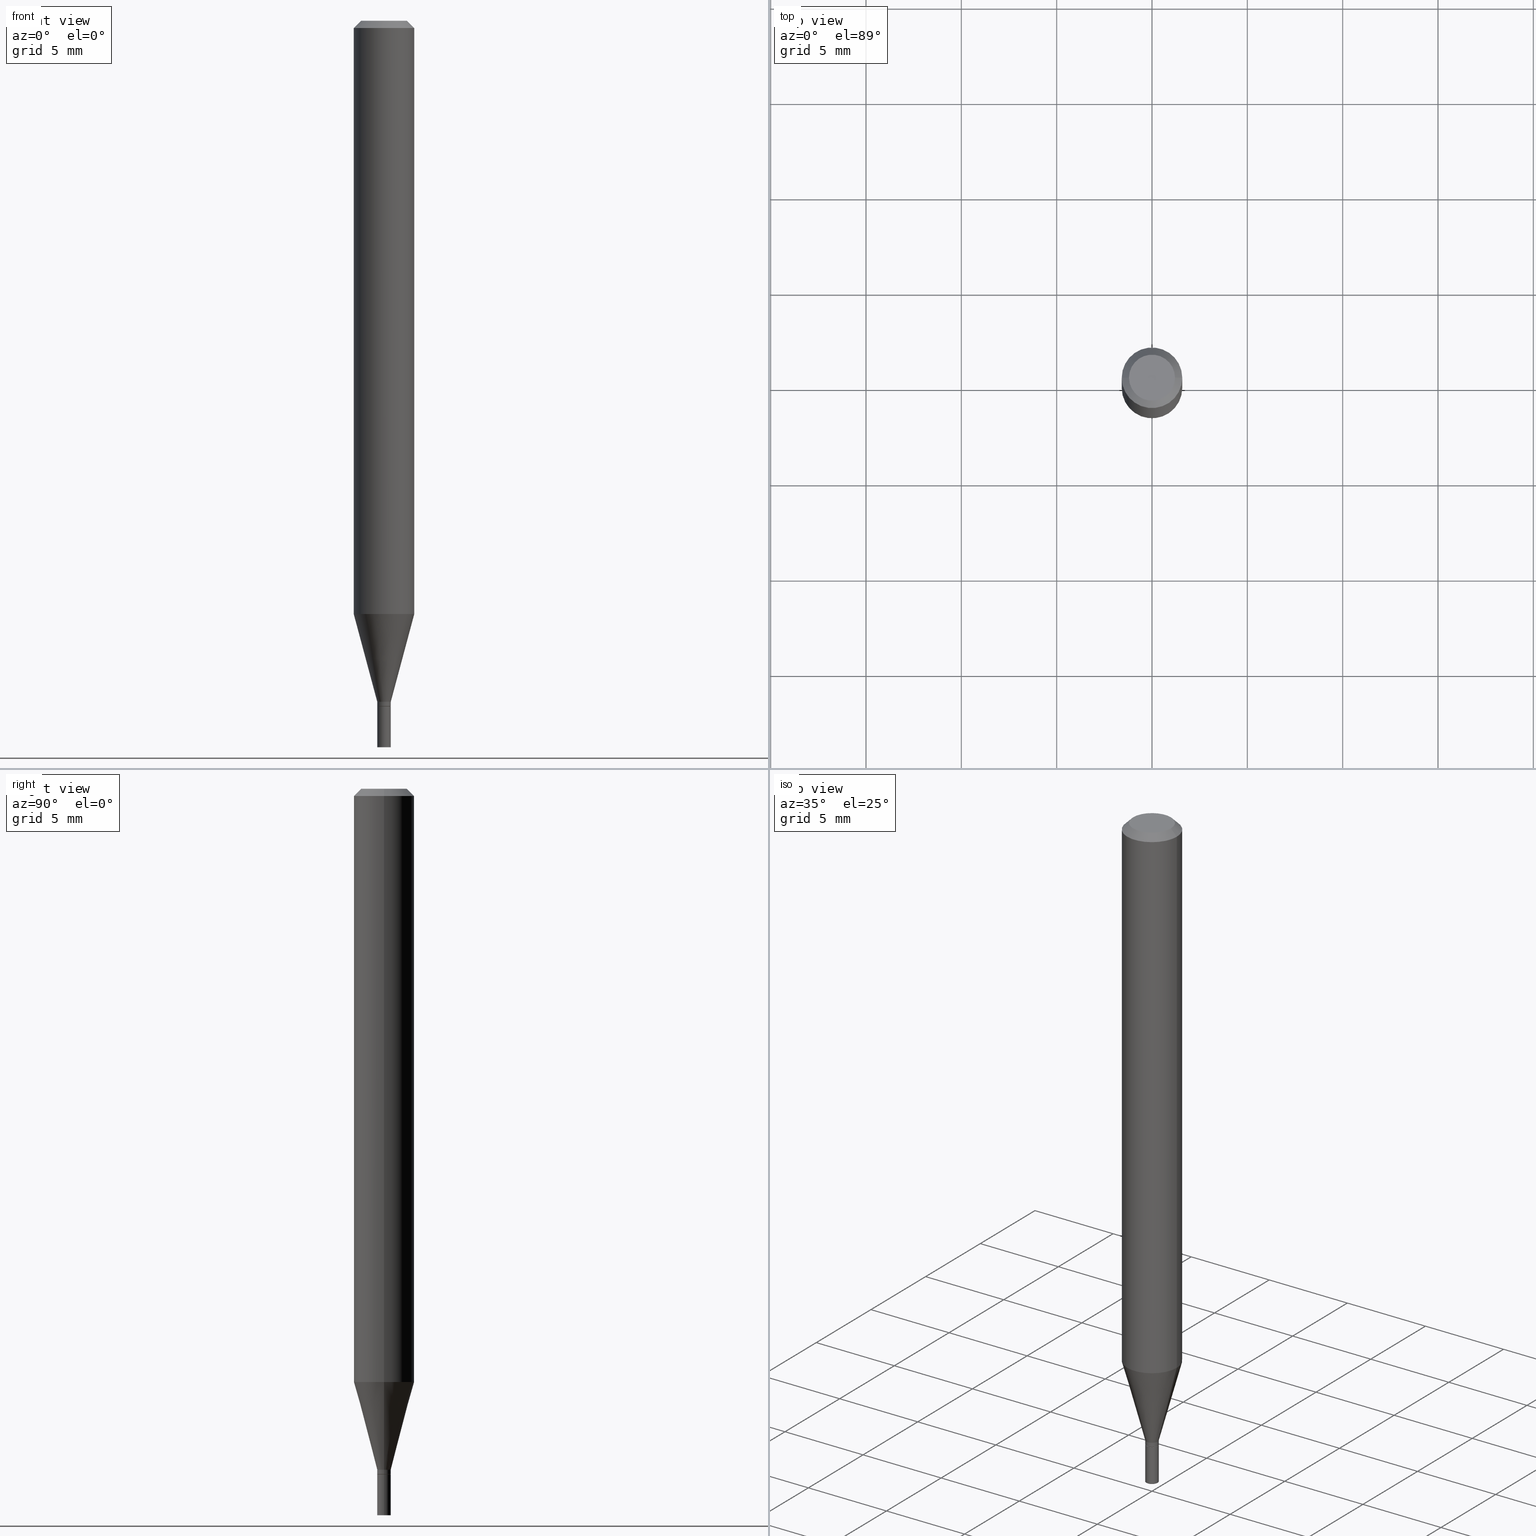
[diagram: canonical four-view strip — front | top / right | iso, engineering-drawing reading convention]
A machine part, canonical four-view strip (front | top / right | iso — engineering-drawing reading convention). The complete STEP part file that produces these views, byte-faithful:
ISO-10303-21;
HEADER;
FILE_DESCRIPTION (( 'STEP AP203' ),
    '1' );
FILE_NAME ('02335.STEP',
    '2024-03-18T20:09:18',
    ( '' ),
    ( '' ),
    'SwSTEP 2.0',
    'SolidWorks 2023',
    '' );
FILE_SCHEMA (( 'CONFIG_CONTROL_DESIGN' ));
ENDSEC;

DATA;
#1 = DIRECTION ( 'NONE',  ( 1.000000000000000000, -6.982962677686267499E-15, 4.852736867747366768E-29 ) ) ;
#2 = EDGE_CURVE ( 'NONE', #356, #214, #98, .T. ) ;
#3 = EDGE_CURVE ( 'NONE', #445, #4, #455, .T. ) ;
#4 = VERTEX_POINT ( 'NONE', #352 ) ;
#5 = DIRECTION ( 'NONE',  ( 2.438088387897960049E-29, -3.491481338843145188E-15, -1.000000000000000000 ) ) ;
#6 = FACE_OUTER_BOUND ( 'NONE', #204, .T. ) ;
#7 = AXIS2_PLACEMENT_3D ( 'NONE', #68, #444, #361 ) ;
#8 = ORIENTED_EDGE ( 'NONE', *, *, #19, .F. ) ;
#9 = CARTESIAN_POINT ( 'NONE',  ( 3.462783829558154044E-29, -4.943937575801894533E-15, -1.416000000000000147 ) ) ;
#10 = CARTESIAN_POINT ( 'NONE',  ( -0.01400000000000000203, -4.991103809026892241E-15, -1.416000000000000147 ) ) ;
#11 = ADVANCED_FACE ( 'NONE', ( #307 ), #235, .F. ) ;
#12 = ORIENTED_EDGE ( 'NONE', *, *, #447, .F. ) ;
#13 = DIRECTION ( 'NONE',  ( 1.000000000000000000, -6.982962677686266711E-15, 4.876176775795935793E-29 ) ) ;
#14 = ORIENTED_EDGE ( 'NONE', *, *, #50, .T. ) ;
#15 = DIRECTION ( 'NONE',  ( -0.2588190451025213501, 5.211531920934551042E-15, 0.9659258262890682012 ) ) ;
#16 = CIRCLE ( 'NONE', #142, 0.01400000000000000203 ) ;
#17 = AXIS2_PLACEMENT_3D ( 'NONE', #226, #267, #386 ) ;
#18 =( NAMED_UNIT ( * ) PLANE_ANGLE_UNIT ( ) SI_UNIT ( $, .RADIAN. ) );
#19 = EDGE_CURVE ( 'NONE', #299, #322, #313, .T. ) ;
#20 = AXIS2_PLACEMENT_3D ( 'NONE', #316, #140, #103 ) ;
#21 = SHAPE_DEFINITION_REPRESENTATION ( #354, #346 ) ;
#22 = PERSON_AND_ORGANIZATION ( #374, #189 ) ;
#23 = CALENDAR_DATE ( 2024, 18, 3 ) ;
#24 = ORIENTED_EDGE ( 'NONE', *, *, #177, .F. ) ;
#25 = CALENDAR_DATE ( 2024, 18, 3 ) ;
#26 = AXIS2_PLACEMENT_3D ( 'NONE', #97, #244, #208 ) ;
#27 = EDGE_CURVE ( 'NONE', #34, #299, #270, .T. ) ;
#28 = DIRECTION ( 'NONE',  ( 1.000000000000000000, -6.982962677686266711E-15, 0.000000000000000000 ) ) ;
#29 = DIRECTION ( 'NONE',  ( 2.445468806185136597E-29, -3.491481338843145583E-15, -1.000000000000000000 ) ) ;
#30 = ORIENTED_EDGE ( 'NONE', *, *, #360, .F. ) ;
#31 = CC_DESIGN_PERSON_AND_ORGANIZATION_ASSIGNMENT ( #45, #276, ( #274 ) ) ;
#32 = EDGE_CURVE ( 'NONE', #216, #356, #378, .T. ) ;
#33 = CARTESIAN_POINT ( 'NONE',  ( 9.776147748764236100E-17, 0.01399999999999505806, -1.416000000000000147 ) ) ;
#34 = VERTEX_POINT ( 'NONE', #80 ) ;
#35 = CARTESIAN_POINT ( 'NONE',  ( -0.01400000000000000203, 9.947598300641404042E-17, -6.886509126356868606E-31 ) ) ;
#36 = VECTOR ( 'NONE', #117, 39.37007874015748143 ) ;
#37 = VECTOR ( 'NONE', #355, 39.37007874015748143 ) ;
#38 = ORIENTED_EDGE ( 'NONE', *, *, #50, .F. ) ;
#39 = ORIENTED_EDGE ( 'NONE', *, *, #87, .F. ) ;
#40 = DIRECTION ( 'NONE',  ( 2.438088387897960049E-29, -3.491481338843145188E-15, -1.000000000000000000 ) ) ;
#41 = EDGE_LOOP ( 'NONE', ( #43, #112 ) ) ;
#42 = DIRECTION ( 'NONE',  ( -2.445468806185136597E-29, 3.491481338843145583E-15, 1.000000000000000000 ) ) ;
#43 = ORIENTED_EDGE ( 'NONE', *, *, #325, .T. ) ;
#44 = DIRECTION ( 'NONE',  ( 1.000000000000000000, -6.982962677686265922E-15, 4.876176775795935793E-29 ) ) ;
#45 = PERSON_AND_ORGANIZATION ( #374, #189 ) ;
#46 = AXIS2_PLACEMENT_3D ( 'NONE', #232, #190, #123 ) ;
#47 = VERTEX_POINT ( 'NONE', #317 ) ;
#48 = CONICAL_SURFACE ( 'NONE', #448, 0.01350000000000000158, 0.7853981633974718157 ) ;
#49 = FACE_OUTER_BOUND ( 'NONE', #167, .T. ) ;
#50 = EDGE_CURVE ( 'NONE', #376, #214, #358, .T. ) ;
#51 = MECHANICAL_CONTEXT ( 'NONE', #353, 'mechanical' ) ;
#52 = CARTESIAN_POINT ( 'NONE',  ( 3.438329141496302499E-29, -4.909022762413463673E-15, -1.406000000000000139 ) ) ;
#53 = CLOSED_SHELL ( 'NONE', ( #379, #421, #248, #392, #417, #326, #419, #261, #328, #58, #415, #127 ) ) ;
#54 = AXIS2_PLACEMENT_3D ( 'NONE', #52, #186, #296 ) ;
#55 = LOCAL_TIME ( 16, 9, 18.00000000000000000, #454 ) ;
#56 = DIRECTION ( 'NONE',  ( -2.445468806185136597E-29, 3.491481338843145583E-15, 1.000000000000000000 ) ) ;
#57 = FACE_OUTER_BOUND ( 'NONE', #391, .T. ) ;
#58 = ADVANCED_FACE ( 'NONE', ( #434 ), #215, .F. ) ;
#59 = ORIENTED_EDGE ( 'NONE', *, *, #385, .T. ) ;
#60 = AXIS2_PLACEMENT_3D ( 'NONE', #279, #440, #104 ) ;
#61 = CIRCLE ( 'NONE', #26, 0.01350000000000000158 ) ;
#62 = CC_DESIGN_APPROVAL ( #333, ( #195 ) ) ;
#63 = DATE_AND_TIME ( #23, #55 ) ;
#64 = EDGE_CURVE ( 'NONE', #106, #47, #71, .T. ) ;
#65 = DATE_TIME_ROLE ( 'classification_date' ) ;
#66 = FACE_OUTER_BOUND ( 'NONE', #187, .T. ) ;
#67 = DIRECTION ( 'NONE',  ( -2.445468806185136597E-29, 3.491481338843145583E-15, 1.000000000000000000 ) ) ;
#68 = CARTESIAN_POINT ( 'NONE',  ( 3.438329141496302499E-29, -4.909022762413463673E-15, -1.406000000000000139 ) ) ;
#69 = CARTESIAN_POINT ( 'NONE',  ( -0.06250000000000000000, -1.720621426954643378E-15, -0.01499999999999999944 ) ) ;
#70 = EDGE_LOOP ( 'NONE', ( #110, #252, #334, #365 ) ) ;
#71 = CIRCLE ( 'NONE', #184, 0.01350000000000000158 ) ;
#72 = CARTESIAN_POINT ( 'NONE',  ( 3.462783829558154044E-29, -4.943937575801894533E-15, -1.416000000000000147 ) ) ;
#73 = ORIENTED_EDGE ( 'NONE', *, *, #224, .T. ) ;
#74 = AXIS2_PLACEMENT_3D ( 'NONE', #420, #176, #340 ) ;
#75 = CONICAL_SURFACE ( 'NONE', #289, 0.06250000000000000000, 0.7853981633974579379 ) ;
#76 = VERTEX_POINT ( 'NONE', #223 ) ;
#77 = EDGE_CURVE ( 'NONE', #246, #341, #16, .T. ) ;
#78 = CARTESIAN_POINT ( 'NONE',  ( -0.01400000000000000203, -4.991103809026892241E-15, -1.500000000000000222 ) ) ;
#79 = CALENDAR_DATE ( 2024, 18, 3 ) ;
#80 = CARTESIAN_POINT ( 'NONE',  ( 0.01399999999999992223, -5.006784239901070239E-15, -1.406000000000000139 ) ) ;
#81 = VECTOR ( 'NONE', #15, 39.37007874015747433 ) ;
#82 =( CONVERSION_BASED_UNIT ( 'INCH', #265 ) LENGTH_UNIT ( ) NAMED_UNIT ( #330 ) );
#83 = DIRECTION ( 'NONE',  ( -2.445468806185136877E-29, 3.491481338843145188E-15, 1.000000000000000000 ) ) ;
#84 = EDGE_CURVE ( 'NONE', #322, #299, #338, .T. ) ;
#85 = MANIFOLD_SOLID_BREP ( 'Body-Move/Copy2[2]', #53 ) ;
#86 = CC_DESIGN_APPROVAL ( #129, ( #109 ) ) ;
#87 = EDGE_CURVE ( 'NONE', #299, #214, #94, .T. ) ;
#88 = PERSON_AND_ORGANIZATION ( #374, #189 ) ;
#89 = DIRECTION ( 'NONE',  ( -2.445468806185136597E-29, 3.491481338843145583E-15, 1.000000000000000000 ) ) ;
#90 = CARTESIAN_POINT ( 'NONE',  ( 2.995688370595427801E-29, -4.277049053526764910E-15, -1.224995535832909876 ) ) ;
#91 = ORIENTED_EDGE ( 'NONE', *, *, #32, .F. ) ;
#92 = EDGE_CURVE ( 'NONE', #4, #34, #438, .T. ) ;
#93 = CIRCLE ( 'NONE', #17, 0.01399999999999992396 ) ;
#94 = LINE ( 'NONE', #159, #125 ) ;
#95 = APPROVAL_STATUS ( 'not_yet_approved' ) ;
#96 = APPROVAL_PERSON_ORGANIZATION ( #22, #333, #269 ) ;
#97 = CARTESIAN_POINT ( 'NONE',  ( 3.462783829558154044E-29, -4.943937575801894533E-15, -1.416000000000000147 ) ) ;
#98 = LINE ( 'NONE', #240, #172 ) ;
#99 = VECTOR ( 'NONE', #237, 39.37007874015748143 ) ;
#100 = LINE ( 'NONE', #309, #278 ) ;
#101 = CIRCLE ( 'NONE', #113, 0.01400000000000000203 ) ;
#102 = DIRECTION ( 'NONE',  ( -0.7071067811865542341, 2.468850131082328058E-15, -0.7071067811865405783 ) ) ;
#103 = DIRECTION ( 'NONE',  ( 1.000000000000000000, -6.982962677686266711E-15, 4.876176775795935232E-29 ) ) ;
#104 = DIRECTION ( 'NONE',  ( 1.000000000000000000, -6.982962677686266711E-15, 4.876176775795935232E-29 ) ) ;
#105 = CARTESIAN_POINT ( 'NONE',  ( 0.000000000000000000, 0.000000000000000000, 0.000000000000000000 ) ) ;
#106 = VERTEX_POINT ( 'NONE', #400 ) ;
#107 = CARTESIAN_POINT ( 'NONE',  ( 3.668203209277705088E-31, -5.237222008264718399E-17, -0.01499999999999999944 ) ) ;
#108 = ORIENTED_EDGE ( 'NONE', *, *, #211, .T. ) ;
#109 = PRODUCT_DEFINITION_FORMATION_WITH_SPECIFIED_SOURCE ( 'ANY', '', #319, .NOT_KNOWN. ) ;
#110 = ORIENTED_EDGE ( 'NONE', *, *, #233, .F. ) ;
#111 = APPROVAL_ROLE ( '' ) ;
#112 = ORIENTED_EDGE ( 'NONE', *, *, #300, .T. ) ;
#113 = AXIS2_PLACEMENT_3D ( 'NONE', #72, #318, #439 ) ;
#114 = ORIENTED_EDGE ( 'NONE', *, *, #27, .F. ) ;
#115 = PERSON_AND_ORGANIZATION ( #374, #189 ) ;
#116 = EDGE_CURVE ( 'NONE', #47, #4, #395, .T. ) ;
#117 = DIRECTION ( 'NONE',  ( -2.445468806185136877E-29, 3.491481338843145188E-15, 1.000000000000000000 ) ) ;
#118 = CIRCLE ( 'NONE', #461, 0.01400000000000000203 ) ;
#119 = PERSON_AND_ORGANIZATION ( #374, #189 ) ;
#120 = DIRECTION ( 'NONE',  ( 1.000000000000000000, -6.982962677686262766E-15, 0.000000000000000000 ) ) ;
#121 = DIRECTION ( 'NONE',  ( 1.000000000000000000, -6.982962677686270655E-15, 0.000000000000000000 ) ) ;
#122 = VERTEX_POINT ( 'NONE', #10 ) ;
#123 = DIRECTION ( 'NONE',  ( 1.000000000000000000, -6.982962677686270655E-15, 0.000000000000000000 ) ) ;
#124 = COORDINATED_UNIVERSAL_TIME_OFFSET ( 5, 0, .BEHIND. ) ;
#125 = VECTOR ( 'NONE', #393, 39.37007874015748143 ) ;
#126 = AXIS2_PLACEMENT_3D ( 'NONE', #222, #146, #217 ) ;
#127 = ADVANCED_FACE ( 'NONE', ( #297 ), #180, .T. ) ;
#128 = EDGE_CURVE ( 'NONE', #106, #445, #100, .T. ) ;
#129 = APPROVAL ( #390, 'UNSPECIFIED' ) ;
#130 = ADVANCED_FACE ( 'NONE', ( #459 ), #312, .T. ) ;
#131 = CARTESIAN_POINT ( 'NONE',  ( 0.01400000000000000203, -5.334983485752326321E-15, -1.500000000000000222 ) ) ;
#132 =( GEOMETRIC_REPRESENTATION_CONTEXT ( 3 ) GLOBAL_UNCERTAINTY_ASSIGNED_CONTEXT ( ( #153 ) ) GLOBAL_UNIT_ASSIGNED_CONTEXT ( ( #82, #18, #155 ) ) REPRESENTATION_CONTEXT ( 'NONE', 'WORKASPACE' ) );
#133 = DIRECTION ( 'NONE',  ( -2.445468806185136597E-29, 3.491481338843145583E-15, 1.000000000000000000 ) ) ;
#134 = ORIENTED_EDGE ( 'NONE', *, *, #2, .T. ) ;
#135 = CARTESIAN_POINT ( 'NONE',  ( 3.668203209277704895E-29, -5.237222008264718177E-15, -1.500000000000000222 ) ) ;
#136 = EDGE_CURVE ( 'NONE', #214, #376, #188, .T. ) ;
#137 = FACE_OUTER_BOUND ( 'NONE', #321, .T. ) ;
#138 = DIRECTION ( 'NONE',  ( 0.2588190451025213501, 1.565188264969621968E-15, 0.9659258262890682012 ) ) ;
#139 = ORIENTED_EDGE ( 'NONE', *, *, #192, .T. ) ;
#140 = DIRECTION ( 'NONE',  ( -2.445468806185136597E-29, 3.491481338843145583E-15, 1.000000000000000000 ) ) ;
#141 = ORIENTED_EDGE ( 'NONE', *, *, #128, .T. ) ;
#142 = AXIS2_PLACEMENT_3D ( 'NONE', #383, #89, #120 ) ;
#143 = CARTESIAN_POINT ( 'NONE',  ( 3.668203209277705088E-31, -5.237222008264718399E-17, -0.01499999999999999944 ) ) ;
#144 = CONICAL_SURFACE ( 'NONE', #74, 0.01350000000000000158, 0.7853981633974718157 ) ;
#145 = CC_DESIGN_PERSON_AND_ORGANIZATION_ASSIGNMENT ( #430, #157, ( #109 ) ) ;
#146 = DIRECTION ( 'NONE',  ( 0.000000000000000000, 0.000000000000000000, 1.000000000000000000 ) ) ;
#147 = ORIENTED_EDGE ( 'NONE', *, *, #87, .T. ) ;
#148 = LINE ( 'NONE', #150, #81 ) ;
#149 = ORIENTED_EDGE ( 'NONE', *, *, #84, .F. ) ;
#150 = CARTESIAN_POINT ( 'NONE',  ( -0.01399999999999992223, -4.809546779407050347E-15, -1.406000000000000139 ) ) ;
#151 = APPROVAL_PERSON_ORGANIZATION ( #115, #183, #111 ) ;
#152 = ORIENTED_EDGE ( 'NONE', *, *, #447, .T. ) ;
#153 = UNCERTAINTY_MEASURE_WITH_UNIT (LENGTH_MEASURE( 1.000000000000000082E-05 ), #82, 'distance_accuracy_value', 'NONE');
#154 = PERSON_AND_ORGANIZATION ( #374, #189 ) ;
#155 =( NAMED_UNIT ( * ) SI_UNIT ( $, .STERADIAN. ) SOLID_ANGLE_UNIT ( ) );
#156 = CONICAL_SURFACE ( 'NONE', #7, 0.01399999999999992223, 0.2617993877991500740 ) ;
#157 = PERSON_AND_ORGANIZATION_ROLE ( 'design_supplier' ) ;
#158 = CARTESIAN_POINT ( 'NONE',  ( 3.668203209277705088E-31, -5.237222008264718399E-17, -0.01499999999999999944 ) ) ;
#159 = CARTESIAN_POINT ( 'NONE',  ( 0.06250000000000000000, -4.364351673553916694E-16, 3.047610484872459871E-30 ) ) ;
#160 = EDGE_CURVE ( 'NONE', #445, #76, #452, .T. ) ;
#161 = APPROVAL_DATE_TIME ( #63, #333 ) ;
#162 = AXIS2_PLACEMENT_3D ( 'NONE', #33, #40, #396 ) ;
#163 = CYLINDRICAL_SURFACE ( 'NONE', #20, 0.01400000000000000203 ) ;
#164 = FACE_OUTER_BOUND ( 'NONE', #403, .T. ) ;
#165 = AXIS2_PLACEMENT_3D ( 'NONE', #397, #67, #198 ) ;
#166 = DIRECTION ( 'NONE',  ( -2.445468806185136597E-29, 3.491481338843145583E-15, 1.000000000000000000 ) ) ;
#167 = EDGE_LOOP ( 'NONE', ( #331, #141, #253, #301 ) ) ;
#168 = FACE_OUTER_BOUND ( 'NONE', #423, .T. ) ;
#169 = ORIENTED_EDGE ( 'NONE', *, *, #360, .T. ) ;
#170 = ORIENTED_EDGE ( 'NONE', *, *, #92, .T. ) ;
#171 = CARTESIAN_POINT ( 'NONE',  ( -0.06250000000000000000, -3.832959843676702294E-15, -1.224995535832909876 ) ) ;
#172 = VECTOR ( 'NONE', #209, 39.37007874015748854 ) ;
#173 = APPROVAL_DATE_TIME ( #368, #183 ) ;
#174 = ORIENTED_EDGE ( 'NONE', *, *, #373, .F. ) ;
#175 = ORIENTED_EDGE ( 'NONE', *, *, #160, .F. ) ;
#176 = DIRECTION ( 'NONE',  ( -2.445468806185136597E-29, 3.491481338843145583E-15, 1.000000000000000000 ) ) ;
#177 = EDGE_CURVE ( 'NONE', #341, #288, #382, .T. ) ;
#178 = ORIENTED_EDGE ( 'NONE', *, *, #64, .F. ) ;
#179 = PERSON_AND_ORGANIZATION_ROLE ( 'design_owner' ) ;
#180 = CYLINDRICAL_SURFACE ( 'NONE', #370, 0.01399999999999992223 ) ;
#181 = EDGE_LOOP ( 'NONE', ( #175, #416, #170, #282 ) ) ;
#182 = CARTESIAN_POINT ( 'NONE',  ( 3.462783829558154044E-29, -4.943937575801894533E-15, -1.416000000000000147 ) ) ;
#183 = APPROVAL ( #381, 'UNSPECIFIED' ) ;
#184 = AXIS2_PLACEMENT_3D ( 'NONE', #257, #221, #263 ) ;
#185 = CC_DESIGN_APPROVAL ( #183, ( #274 ) ) ;
#186 = DIRECTION ( 'NONE',  ( -2.445468806185136597E-29, 3.491481338843145583E-15, 1.000000000000000000 ) ) ;
#187 = EDGE_LOOP ( 'NONE', ( #308, #134, #367, #30 ) ) ;
#188 = CIRCLE ( 'NONE', #236, 0.06250000000000000000 ) ;
#189 = ORGANIZATION ( 'UNSPECIFIED', 'UNSPECIFIED', '' ) ;
#190 = DIRECTION ( 'NONE',  ( -2.445468806185136597E-29, 3.491481338843145583E-15, 1.000000000000000000 ) ) ;
#191 = PERSON_AND_ORGANIZATION_ROLE ( 'creator' ) ;
#192 = EDGE_CURVE ( 'NONE', #4, #445, #93, .T. ) ;
#193 = CARTESIAN_POINT ( 'NONE',  ( 3.576687321579069994E-29, -5.368277968210015545E-15, -1.500000000000000222 ) ) ;
#194 = DIRECTION ( 'NONE',  ( -2.445468806185136877E-29, 3.491481338843145188E-15, 1.000000000000000000 ) ) ;
#195 = SECURITY_CLASSIFICATION ( '', '', #304 ) ;
#196 = DIRECTION ( 'NONE',  ( -0.7071067811865642261, 7.493145998870414114E-15, 0.7071067811865309194 ) ) ;
#197 = DIRECTION ( 'NONE',  ( -1.000000000000000000, 6.982962677686266711E-15, 0.000000000000000000 ) ) ;
#198 = DIRECTION ( 'NONE',  ( 1.000000000000000000, -6.982962677686301420E-15, 0.000000000000000000 ) ) ;
#199 = DIRECTION ( 'NONE',  ( -2.445468806185136597E-29, 3.491481338843145583E-15, 1.000000000000000000 ) ) ;
#200 = PLANE ( 'NONE',  #162 ) ;
#201 = CC_DESIGN_PERSON_AND_ORGANIZATION_ASSIGNMENT ( #88, #348, ( #195 ) ) ;
#202 = CARTESIAN_POINT ( 'NONE',  ( 0.01399999999999992223, -9.776147748760718273E-17, 6.826647486114272170E-31 ) ) ;
#203 = CARTESIAN_POINT ( 'NONE',  ( 7.003305027062207074E-45, -9.998863510493265527E-31, -2.863788329398962481E-16 ) ) ;
#204 = EDGE_LOOP ( 'NONE', ( #362, #108, #327, #149 ) ) ;
#205 = DIRECTION ( 'NONE',  ( -2.445468806185136597E-29, 3.491481338843145583E-15, 1.000000000000000000 ) ) ;
#206 = LOCAL_TIME ( 16, 9, 18.00000000000000000, #411 ) ;
#207 = ORIENTED_EDGE ( 'NONE', *, *, #2, .F. ) ;
#208 = DIRECTION ( 'NONE',  ( 1.000000000000000000, -6.982962677686296687E-15, 0.000000000000000000 ) ) ;
#209 = DIRECTION ( 'NONE',  ( 0.7071067811865542341, -7.319954787623278133E-15, -0.7071067811865405783 ) ) ;
#210 = ORIENTED_EDGE ( 'NONE', *, *, #92, .F. ) ;
#211 = EDGE_CURVE ( 'NONE', #76, #34, #230, .T. ) ;
#212 = ORIENTED_EDGE ( 'NONE', *, *, #233, .T. ) ;
#213 = LINE ( 'NONE', #320, #389 ) ;
#214 = VERTEX_POINT ( 'NONE', #284 ) ;
#215 = PLANE ( 'NONE',  #229 ) ;
#216 = VERTEX_POINT ( 'NONE', #466 ) ;
#217 = DIRECTION ( 'NONE',  ( 1.000000000000000000, 0.000000000000000000, 0.000000000000000000 ) ) ;
#218 = AXIS2_PLACEMENT_3D ( 'NONE', #193, #268, #427 ) ;
#219 = DIRECTION ( 'NONE',  ( 1.000000000000000000, -6.982962677686296687E-15, 0.000000000000000000 ) ) ;
#220 = CIRCLE ( 'NONE', #350, 0.01399999999999992223 ) ;
#221 = DIRECTION ( 'NONE',  ( -2.445468806185136597E-29, 3.491481338843145583E-15, 1.000000000000000000 ) ) ;
#222 = CARTESIAN_POINT ( 'NONE',  ( 0.000000000000000000, 0.000000000000000000, 0.000000000000000000 ) ) ;
#223 = CARTESIAN_POINT ( 'NONE',  ( -0.01399999999999992223, -4.321253311541875926E-15, -1.406000000000000139 ) ) ;
#224 = EDGE_CURVE ( 'NONE', #341, #246, #118, .T. ) ;
#225 = DIRECTION ( 'NONE',  ( -2.445468806185136877E-29, 3.491481338843145188E-15, 1.000000000000000000 ) ) ;
#226 = CARTESIAN_POINT ( 'NONE',  ( 3.461561095155061243E-29, -4.942191835132473030E-15, -1.415500000000000203 ) ) ;
#227 = DIRECTION ( 'NONE',  ( -2.445468806185136597E-29, 3.491481338843145583E-15, 1.000000000000000000 ) ) ;
#228 = DIRECTION ( 'NONE',  ( 1.000000000000000000, -6.982962677686232790E-15, 0.000000000000000000 ) ) ;
#229 = AXIS2_PLACEMENT_3D ( 'NONE', #182, #451, #302 ) ;
#230 = CIRCLE ( 'NONE', #260, 0.01399999999999992223 ) ;
#231 = CALENDAR_DATE ( 2024, 18, 3 ) ;
#232 = CARTESIAN_POINT ( 'NONE',  ( 2.995688370595427801E-29, -4.277049053526764910E-15, -1.224995535832909876 ) ) ;
#233 = EDGE_CURVE ( 'NONE', #246, #122, #463, .T. ) ;
#234 = EDGE_LOOP ( 'NONE', ( #207, #91, #169, #14 ) ) ;
#235 = PLANE ( 'NONE',  #218 ) ;
#236 = AXIS2_PLACEMENT_3D ( 'NONE', #158, #310, #272 ) ;
#237 = DIRECTION ( 'NONE',  ( 0.7071067811865642261, -2.468850131082431399E-15, 0.7071067811865309194 ) ) ;
#238 = CALENDAR_DATE ( 2024, 18, 3 ) ;
#239 = PLANE ( 'NONE',  #249 ) ;
#240 = CARTESIAN_POINT ( 'NONE',  ( 0.06250000000000000000, -4.811533449433679005E-16, -0.01499999999999999944 ) ) ;
#241 = AXIS2_PLACEMENT_3D ( 'NONE', #363, #199, #292 ) ;
#242 = AXIS2_PLACEMENT_3D ( 'NONE', #107, #329, #197 ) ;
#243 = DIRECTION ( 'NONE',  ( -2.445468806185136597E-29, 3.491481338843145583E-15, 1.000000000000000000 ) ) ;
#244 = DIRECTION ( 'NONE',  ( -2.445468806185136597E-29, 3.491481338843145583E-15, 1.000000000000000000 ) ) ;
#245 = EDGE_LOOP ( 'NONE', ( #73, #212, #262, #24 ) ) ;
#246 = VERTEX_POINT ( 'NONE', #78 ) ;
#247 = CARTESIAN_POINT ( 'NONE',  ( 3.438329141496302499E-29, -4.909022762413463673E-15, -1.406000000000000139 ) ) ;
#248 = ADVANCED_FACE ( 'NONE', ( #66 ), #275, .T. ) ;
#249 = AXIS2_PLACEMENT_3D ( 'NONE', #251, #5, #324 ) ;
#250 = ORIENTED_EDGE ( 'NONE', *, *, #116, .T. ) ;
#251 = CARTESIAN_POINT ( 'NONE',  ( 3.316907271900976096E-16, 0.04749999999999999362, -3.090347800649974958E-16 ) ) ;
#252 = ORIENTED_EDGE ( 'NONE', *, *, #77, .T. ) ;
#253 = ORIENTED_EDGE ( 'NONE', *, *, #192, .F. ) ;
#254 = APPLICATION_PROTOCOL_DEFINITION ( 'international standard', 'config_control_design', 1994, #353 ) ;
#255 = CARTESIAN_POINT ( 'NONE',  ( 0.000000000000000000, 0.000000000000000000, 0.000000000000000000 ) ) ;
#256 = ORIENTED_EDGE ( 'NONE', *, *, #19, .T. ) ;
#257 = CARTESIAN_POINT ( 'NONE',  ( 3.462783829558154044E-29, -4.943937575801894533E-15, -1.416000000000000147 ) ) ;
#258 = EDGE_LOOP ( 'NONE', ( #174, #178 ) ) ;
#259 = CARTESIAN_POINT ( 'NONE',  ( -0.01399999999999992396, -4.842715852126059704E-15, -1.415500000000000203 ) ) ;
#260 = AXIS2_PLACEMENT_3D ( 'NONE', #422, #56, #228 ) ;
#261 = ADVANCED_FACE ( 'NONE', ( #281 ), #75, .T. ) ;
#262 = ORIENTED_EDGE ( 'NONE', *, *, #325, .F. ) ;
#263 = DIRECTION ( 'NONE',  ( 1.000000000000000000, -6.982962677686296687E-15, 0.000000000000000000 ) ) ;
#264 = CARTESIAN_POINT ( 'NONE',  ( 0.000000000000000000, 0.000000000000000000, 0.000000000000000000 ) ) ;
#265 = LENGTH_MEASURE_WITH_UNIT ( LENGTH_MEASURE( 0.02539999999999999897 ), #446 );
#266 = CARTESIAN_POINT ( 'NONE',  ( -0.01399999999999992223, 9.947598300641347342E-17, -6.886509126356829194E-31 ) ) ;
#267 = DIRECTION ( 'NONE',  ( -2.445468806185136597E-29, 3.491481338843145583E-15, 1.000000000000000000 ) ) ;
#268 = DIRECTION ( 'NONE',  ( -2.438088387897960049E-29, 3.491481338843145188E-15, 1.000000000000000000 ) ) ;
#269 = APPROVAL_ROLE ( '' ) ;
#270 = LINE ( 'NONE', #387, #349 ) ;
#271 = DATE_AND_TIME ( #231, #425 ) ;
#272 = DIRECTION ( 'NONE',  ( 1.000000000000000000, -6.982962677686266711E-15, 0.000000000000000000 ) ) ;
#273 = AXIS2_PLACEMENT_3D ( 'NONE', #90, #458, #121 ) ;
#274 = PRODUCT_DEFINITION ( 'UNKNOWN', '', #109, #337 ) ;
#275 = CONICAL_SURFACE ( 'NONE', #242, 0.06250000000000000000, 0.7853981633974579379 ) ;
#276 = PERSON_AND_ORGANIZATION_ROLE ( 'creator' ) ;
#277 = CARTESIAN_POINT ( 'NONE',  ( 0.04749999999999999362, -4.035134999187584047E-16, -2.863788329398937336E-16 ) ) ;
#278 = VECTOR ( 'NONE', #196, 39.37007874015748143 ) ;
#279 = CARTESIAN_POINT ( 'NONE',  ( 0.000000000000000000, 0.000000000000000000, 0.000000000000000000 ) ) ;
#280 = CONICAL_SURFACE ( 'NONE', #54, 0.01399999999999992223, 0.2617993877991500740 ) ;
#281 = FACE_OUTER_BOUND ( 'NONE', #234, .T. ) ;
#282 = ORIENTED_EDGE ( 'NONE', *, *, #211, .F. ) ;
#283 = CYLINDRICAL_SURFACE ( 'NONE', #456, 0.06250000000000000000 ) ;
#284 = CARTESIAN_POINT ( 'NONE',  ( 0.06250000000000000000, -4.888073874380388472E-16, -0.01499999999999999944 ) ) ;
#285 = EDGE_CURVE ( 'NONE', #34, #76, #220, .T. ) ;
#286 = ORIENTED_EDGE ( 'NONE', *, *, #160, .T. ) ;
#287 = CARTESIAN_POINT ( 'NONE',  ( 3.462783829558154044E-29, -4.943937575801894533E-15, -1.416000000000000147 ) ) ;
#288 = VERTEX_POINT ( 'NONE', #351 ) ;
#289 = AXIS2_PLACEMENT_3D ( 'NONE', #143, #29, #399 ) ;
#290 = ORIENTED_EDGE ( 'NONE', *, *, #77, .F. ) ;
#291 = FACE_OUTER_BOUND ( 'NONE', #70, .T. ) ;
#292 = DIRECTION ( 'NONE',  ( 1.000000000000000000, -6.982962677686267499E-15, 4.852736867747366768E-29 ) ) ;
#293 = ORIENTED_EDGE ( 'NONE', *, *, #285, .T. ) ;
#294 = EDGE_LOOP ( 'NONE', ( #12, #311, #147, #38 ) ) ;
#295 = CARTESIAN_POINT ( 'NONE',  ( -0.06250000000000000000, 4.440892098500626162E-16, -3.074334431409316114E-30 ) ) ;
#296 = DIRECTION ( 'NONE',  ( 1.000000000000000000, -6.982962677686232790E-15, 0.000000000000000000 ) ) ;
#297 = FACE_OUTER_BOUND ( 'NONE', #181, .T. ) ;
#298 = VECTOR ( 'NONE', #83, 39.37007874015748143 ) ;
#299 = VERTEX_POINT ( 'NONE', #435 ) ;
#300 = EDGE_CURVE ( 'NONE', #122, #288, #306, .T. ) ;
#301 = ORIENTED_EDGE ( 'NONE', *, *, #116, .F. ) ;
#302 = DIRECTION ( 'NONE',  ( 1.000000000000000000, -6.982962677686265922E-15, 4.876176775795935793E-29 ) ) ;
#303 = CC_DESIGN_PERSON_AND_ORGANIZATION_ASSIGNMENT ( #154, #179, ( #319 ) ) ;
#304 = SECURITY_CLASSIFICATION_LEVEL ( 'unclassified' ) ;
#305 = VECTOR ( 'NONE', #194, 39.37007874015748143 ) ;
#306 = CIRCLE ( 'NONE', #398, 0.01400000000000000203 ) ;
#307 = FACE_OUTER_BOUND ( 'NONE', #344, .T. ) ;
#308 = ORIENTED_EDGE ( 'NONE', *, *, #385, .F. ) ;
#309 = CARTESIAN_POINT ( 'NONE',  ( -0.01350000000000000158, -4.848014306474281317E-15, -1.416000000000000147 ) ) ;
#310 = DIRECTION ( 'NONE',  ( -2.445468806185136597E-29, 3.491481338843145583E-15, 1.000000000000000000 ) ) ;
#311 = ORIENTED_EDGE ( 'NONE', *, *, #84, .T. ) ;
#312 = CYLINDRICAL_SURFACE ( 'NONE', #60, 0.01400000000000000203 ) ;
#313 = CIRCLE ( 'NONE', #273, 0.06250000000000000000 ) ;
#314 = LOCAL_TIME ( 16, 9, 18.00000000000000000, #426 ) ;
#315 = LOCAL_TIME ( 16, 9, 18.00000000000000000, #460 ) ;
#316 = CARTESIAN_POINT ( 'NONE',  ( 0.000000000000000000, 0.000000000000000000, 0.000000000000000000 ) ) ;
#317 = CARTESIAN_POINT ( 'NONE',  ( 0.01350000000000000158, -5.038207571950659670E-15, -1.416000000000000147 ) ) ;
#318 = DIRECTION ( 'NONE',  ( -2.445468806185136597E-29, 3.491481338843145583E-15, 1.000000000000000000 ) ) ;
#319 = PRODUCT ( '02335', '02335', '', ( #51 ) ) ;
#320 = CARTESIAN_POINT ( 'NONE',  ( -0.06250000000000000000, 3.840629472727444916E-16, -0.01499999999999999944 ) ) ;
#321 = EDGE_LOOP ( 'NONE', ( #256, #152, #465, #39 ) ) ;
#322 = VERTEX_POINT ( 'NONE', #171 ) ;
#323 = CC_DESIGN_PERSON_AND_ORGANIZATION_ASSIGNMENT ( #119, #191, ( #109 ) ) ;
#324 = DIRECTION ( 'NONE',  ( -1.000000000000000000, 6.982962677686265922E-15, -4.876176775795935793E-29 ) ) ;
#325 = EDGE_CURVE ( 'NONE', #288, #122, #101, .T. ) ;
#326 = ADVANCED_FACE ( 'NONE', ( #6 ), #156, .T. ) ;
#327 = ORIENTED_EDGE ( 'NONE', *, *, #27, .T. ) ;
#328 = ADVANCED_FACE ( 'NONE', ( #168 ), #239, .F. ) ;
#329 = DIRECTION ( 'NONE',  ( 2.445468806185136597E-29, -3.491481338843145583E-15, -1.000000000000000000 ) ) ;
#330 = DIMENSIONAL_EXPONENTS ( 1.000000000000000000, 0.000000000000000000, 0.000000000000000000, 0.000000000000000000, 0.000000000000000000, 0.000000000000000000, 0.000000000000000000 ) ;
#331 = ORIENTED_EDGE ( 'NONE', *, *, #373, .T. ) ;
#332 = DIRECTION ( 'NONE',  ( -2.445468806185136597E-29, 3.491481338843145583E-15, 1.000000000000000000 ) ) ;
#333 = APPROVAL ( #95, 'UNSPECIFIED' ) ;
#334 = ORIENTED_EDGE ( 'NONE', *, *, #177, .T. ) ;
#335 = APPLICATION_PROTOCOL_DEFINITION ( 'international standard', 'config_control_design', 1994, #429 ) ;
#336 = ADVANCED_FACE ( 'NONE', ( #291 ), #163, .T. ) ;
#337 = DESIGN_CONTEXT ( 'detailed design', #429, 'design' ) ;
#338 = CIRCLE ( 'NONE', #46, 0.06250000000000000000 ) ;
#339 = AXIS2_PLACEMENT_3D ( 'NONE', #264, #372, #424 ) ;
#340 = DIRECTION ( 'NONE',  ( 1.000000000000000000, -6.982962677686296687E-15, 0.000000000000000000 ) ) ;
#341 = VERTEX_POINT ( 'NONE', #131 ) ;
#342 = CYLINDRICAL_SURFACE ( 'NONE', #339, 0.06250000000000000000 ) ;
#343 = CARTESIAN_POINT ( 'NONE',  ( 0.01400000000000000203, -9.776147748760774973E-17, 6.826647486114310706E-31 ) ) ;
#344 = EDGE_LOOP ( 'NONE', ( #453, #290 ) ) ;
#345 = DATE_AND_TIME ( #238, #315 ) ;
#346 = ADVANCED_BREP_SHAPE_REPRESENTATION ( '02335', ( #409, #85, #126 ), #132 ) ;
#347 = CC_DESIGN_SECURITY_CLASSIFICATION ( #195, ( #109 ) ) ;
#348 = PERSON_AND_ORGANIZATION_ROLE ( 'classification_officer' ) ;
#349 = VECTOR ( 'NONE', #138, 39.37007874015747433 ) ;
#350 = AXIS2_PLACEMENT_3D ( 'NONE', #247, #243, #404 ) ;
#351 = CARTESIAN_POINT ( 'NONE',  ( 0.01400000000000000203, -5.041699053289501888E-15, -1.416000000000000147 ) ) ;
#352 = CARTESIAN_POINT ( 'NONE',  ( 0.01399999999999992396, -5.039953312620081174E-15, -1.415500000000000203 ) ) ;
#353 = APPLICATION_CONTEXT ( 'configuration controlled 3d designs of mechanical parts and assemblies' ) ;
#354 = PRODUCT_DEFINITION_SHAPE ( 'NONE', 'NONE',  #274 ) ;
#355 = DIRECTION ( 'NONE',  ( -2.445468806185136877E-29, 3.491481338843145188E-15, 1.000000000000000000 ) ) ;
#356 = VERTEX_POINT ( 'NONE', #277 ) ;
#357 = DIRECTION ( 'NONE',  ( -2.445468806185136597E-29, 3.491481338843145583E-15, 1.000000000000000000 ) ) ;
#358 = CIRCLE ( 'NONE', #414, 0.06250000000000000000 ) ;
#359 = CIRCLE ( 'NONE', #405, 0.04749999999999999362 ) ;
#360 = EDGE_CURVE ( 'NONE', #216, #376, #213, .T. ) ;
#361 = DIRECTION ( 'NONE',  ( 1.000000000000000000, -6.982962677686232790E-15, 0.000000000000000000 ) ) ;
#362 = ORIENTED_EDGE ( 'NONE', *, *, #407, .F. ) ;
#363 = CARTESIAN_POINT ( 'NONE',  ( 7.003305027062207074E-45, -9.998863510493265527E-31, -2.863788329398962481E-16 ) ) ;
#364 = CARTESIAN_POINT ( 'NONE',  ( 3.668203209277705088E-31, -5.237222008264718399E-17, -0.01499999999999999944 ) ) ;
#365 = ORIENTED_EDGE ( 'NONE', *, *, #300, .F. ) ;
#366 = CYLINDRICAL_SURFACE ( 'NONE', #437, 0.01399999999999992223 ) ;
#367 = ORIENTED_EDGE ( 'NONE', *, *, #136, .T. ) ;
#368 = DATE_AND_TIME ( #79, #206 ) ;
#369 = CC_DESIGN_DATE_AND_TIME_ASSIGNMENT ( #345, #65, ( #195 ) ) ;
#370 = AXIS2_PLACEMENT_3D ( 'NONE', #255, #205, #408 ) ;
#371 = ORIENTED_EDGE ( 'NONE', *, *, #32, .T. ) ;
#372 = DIRECTION ( 'NONE',  ( -2.445468806185136597E-29, 3.491481338843145583E-15, 1.000000000000000000 ) ) ;
#373 = EDGE_CURVE ( 'NONE', #47, #106, #61, .T. ) ;
#374 = PERSON ( 'UNSPECIFIED', 'UNSPECIFIED', 'UNSPECIFIED', ('UNSPECIFIED'), ('UNSPECIFIED'), ('UNSPECIFIED') ) ;
#375 = FACE_OUTER_BOUND ( 'NONE', #410, .T. ) ;
#377 = ADVANCED_FACE ( 'NONE', ( #402 ), #200, .F. ) ;
#376 = VERTEX_POINT ( 'NONE', #69 ) ;
#378 = CIRCLE ( 'NONE', #241, 0.04749999999999999362 ) ;
#379 = ADVANCED_FACE ( 'NONE', ( #164 ), #366, .T. ) ;
#380 = APPROVAL_PERSON_ORGANIZATION ( #384, #129, #394 ) ;
#381 = APPROVAL_STATUS ( 'not_yet_approved' ) ;
#382 = LINE ( 'NONE', #343, #298 ) ;
#383 = CARTESIAN_POINT ( 'NONE',  ( 3.668203209277704895E-29, -5.237222008264718177E-15, -1.500000000000000222 ) ) ;
#384 = PERSON_AND_ORGANIZATION ( #374, #189 ) ;
#385 = EDGE_CURVE ( 'NONE', #356, #216, #359, .T. ) ;
#386 = DIRECTION ( 'NONE',  ( 1.000000000000000000, -6.982962677686301420E-15, 0.000000000000000000 ) ) ;
#387 = CARTESIAN_POINT ( 'NONE',  ( 0.01399999999999992223, -5.006784239901070239E-15, -1.406000000000000139 ) ) ;
#388 = ORIENTED_EDGE ( 'NONE', *, *, #128, .F. ) ;
#389 = VECTOR ( 'NONE', #102, 39.37007874015748854 ) ;
#390 = APPROVAL_STATUS ( 'not_yet_approved' ) ;
#391 = EDGE_LOOP ( 'NONE', ( #293, #413, #8, #114 ) ) ;
#392 = ADVANCED_FACE ( 'NONE', ( #137 ), #283, .T. ) ;
#393 = DIRECTION ( 'NONE',  ( -2.445468806185136877E-29, 3.491481338843145188E-15, 1.000000000000000000 ) ) ;
#394 = APPROVAL_ROLE ( '' ) ;
#395 = LINE ( 'NONE', #401, #99 ) ;
#396 = DIRECTION ( 'NONE',  ( -1.000000000000000000, 6.982962677686265922E-15, -4.876176775795935793E-29 ) ) ;
#397 = CARTESIAN_POINT ( 'NONE',  ( 3.461561095155061243E-29, -4.942191835132473030E-15, -1.415500000000000203 ) ) ;
#398 = AXIS2_PLACEMENT_3D ( 'NONE', #287, #166, #406 ) ;
#399 = DIRECTION ( 'NONE',  ( -1.000000000000000000, 6.982962677686266711E-15, 0.000000000000000000 ) ) ;
#400 = CARTESIAN_POINT ( 'NONE',  ( -0.01350000000000000158, -4.845365079300170905E-15, -1.416000000000000147 ) ) ;
#401 = CARTESIAN_POINT ( 'NONE',  ( 0.01350000000000000158, -5.038207571950659670E-15, -1.416000000000000147 ) ) ;
#402 = FACE_OUTER_BOUND ( 'NONE', #41, .T. ) ;
#403 = EDGE_LOOP ( 'NONE', ( #139, #286, #443, #210 ) ) ;
#404 = DIRECTION ( 'NONE',  ( 1.000000000000000000, -6.982962677686232790E-15, 0.000000000000000000 ) ) ;
#405 = AXIS2_PLACEMENT_3D ( 'NONE', #203, #357, #1 ) ;
#406 = DIRECTION ( 'NONE',  ( 1.000000000000000000, -6.982962677686262766E-15, 0.000000000000000000 ) ) ;
#407 = EDGE_CURVE ( 'NONE', #76, #322, #148, .T. ) ;
#408 = DIRECTION ( 'NONE',  ( 1.000000000000000000, -6.982962677686265922E-15, 4.876176775795935793E-29 ) ) ;
#409 = MANIFOLD_SOLID_BREP ( 'Body-Move/Copy2[1]', #436 ) ;
#410 = EDGE_LOOP ( 'NONE', ( #388, #433, #250, #442 ) ) ;
#411 = COORDINATED_UNIVERSAL_TIME_OFFSET ( 5, 0, .BEHIND. ) ;
#412 = LINE ( 'NONE', #295, #431 ) ;
#413 = ORIENTED_EDGE ( 'NONE', *, *, #407, .T. ) ;
#414 = AXIS2_PLACEMENT_3D ( 'NONE', #364, #42, #28 ) ;
#415 = ADVANCED_FACE ( 'NONE', ( #375 ), #48, .T. ) ;
#416 = ORIENTED_EDGE ( 'NONE', *, *, #3, .T. ) ;
#417 = ADVANCED_FACE ( 'NONE', ( #57 ), #280, .T. ) ;
#418 = FACE_OUTER_BOUND ( 'NONE', #294, .T. ) ;
#419 = ADVANCED_FACE ( 'NONE', ( #418 ), #342, .T. ) ;
#420 = CARTESIAN_POINT ( 'NONE',  ( 3.462783829558154044E-29, -4.943937575801894533E-15, -1.416000000000000147 ) ) ;
#421 = ADVANCED_FACE ( 'NONE', ( #49 ), #144, .T. ) ;
#422 = CARTESIAN_POINT ( 'NONE',  ( 3.438329141496302499E-29, -4.909022762413463673E-15, -1.406000000000000139 ) ) ;
#423 = EDGE_LOOP ( 'NONE', ( #371, #59 ) ) ;
#424 = DIRECTION ( 'NONE',  ( 1.000000000000000000, -6.982962677686266711E-15, 4.876176775795935793E-29 ) ) ;
#425 = LOCAL_TIME ( 16, 9, 18.00000000000000000, #124 ) ;
#426 = COORDINATED_UNIVERSAL_TIME_OFFSET ( 5, 0, .BEHIND. ) ;
#427 = DIRECTION ( 'NONE',  ( 1.000000000000000000, -6.982962677686265922E-15, 4.876176775795935793E-29 ) ) ;
#428 = DATE_TIME_ROLE ( 'creation_date' ) ;
#429 = APPLICATION_CONTEXT ( 'configuration controlled 3d designs of mechanical parts and assemblies' ) ;
#430 = PERSON_AND_ORGANIZATION ( #374, #189 ) ;
#431 = VECTOR ( 'NONE', #225, 39.37007874015748143 ) ;
#432 = APPROVAL_DATE_TIME ( #271, #129 ) ;
#433 = ORIENTED_EDGE ( 'NONE', *, *, #64, .T. ) ;
#434 = FACE_OUTER_BOUND ( 'NONE', #258, .T. ) ;
#435 = CARTESIAN_POINT ( 'NONE',  ( 0.06250000000000000000, -4.713484220882155791E-15, -1.224995535832909876 ) ) ;
#436 = CLOSED_SHELL ( 'NONE', ( #130, #11, #336, #377 ) ) ;
#437 = AXIS2_PLACEMENT_3D ( 'NONE', #464, #133, #44 ) ;
#438 = LINE ( 'NONE', #202, #305 ) ;
#439 = DIRECTION ( 'NONE',  ( 1.000000000000000000, -6.982962677686262766E-15, 0.000000000000000000 ) ) ;
#440 = DIRECTION ( 'NONE',  ( -2.445468806185136597E-29, 3.491481338843145583E-15, 1.000000000000000000 ) ) ;
#441 = DIRECTION ( 'NONE',  ( 1.000000000000000000, -6.982962677686262766E-15, 0.000000000000000000 ) ) ;
#442 = ORIENTED_EDGE ( 'NONE', *, *, #3, .F. ) ;
#443 = ORIENTED_EDGE ( 'NONE', *, *, #285, .F. ) ;
#444 = DIRECTION ( 'NONE',  ( -2.445468806185136597E-29, 3.491481338843145583E-15, 1.000000000000000000 ) ) ;
#445 = VERTEX_POINT ( 'NONE', #259 ) ;
#446 =( LENGTH_UNIT ( ) NAMED_UNIT ( * ) SI_UNIT ( $, .METRE. ) );
#447 = EDGE_CURVE ( 'NONE', #322, #376, #412, .T. ) ;
#448 = AXIS2_PLACEMENT_3D ( 'NONE', #9, #449, #219 ) ;
#449 = DIRECTION ( 'NONE',  ( -2.445468806185136597E-29, 3.491481338843145583E-15, 1.000000000000000000 ) ) ;
#450 = CC_DESIGN_DATE_AND_TIME_ASSIGNMENT ( #457, #428, ( #274 ) ) ;
#451 = DIRECTION ( 'NONE',  ( -2.438088387897960049E-29, 3.491481338843145188E-15, 1.000000000000000000 ) ) ;
#452 = LINE ( 'NONE', #266, #36 ) ;
#453 = ORIENTED_EDGE ( 'NONE', *, *, #224, .F. ) ;
#454 = COORDINATED_UNIVERSAL_TIME_OFFSET ( 5, 0, .BEHIND. ) ;
#455 = CIRCLE ( 'NONE', #165, 0.01399999999999992396 ) ;
#456 = AXIS2_PLACEMENT_3D ( 'NONE', #105, #332, #13 ) ;
#457 = DATE_AND_TIME ( #25, #314 ) ;
#458 = DIRECTION ( 'NONE',  ( -2.445468806185136597E-29, 3.491481338843145583E-15, 1.000000000000000000 ) ) ;
#459 = FACE_OUTER_BOUND ( 'NONE', #245, .T. ) ;
#460 = COORDINATED_UNIVERSAL_TIME_OFFSET ( 5, 0, .BEHIND. ) ;
#461 = AXIS2_PLACEMENT_3D ( 'NONE', #135, #227, #441 ) ;
#462 = PRODUCT_RELATED_PRODUCT_CATEGORY ( 'detail', '', ( #319 ) ) ;
#463 = LINE ( 'NONE', #35, #37 ) ;
#464 = CARTESIAN_POINT ( 'NONE',  ( 0.000000000000000000, 0.000000000000000000, 0.000000000000000000 ) ) ;
#465 = ORIENTED_EDGE ( 'NONE', *, *, #136, .F. ) ;
#466 = CARTESIAN_POINT ( 'NONE',  ( -0.04749999999999999362, 3.578768372314205575E-16, -2.863788329398987133E-16 ) ) ;
ENDSEC;
END-ISO-10303-21;
